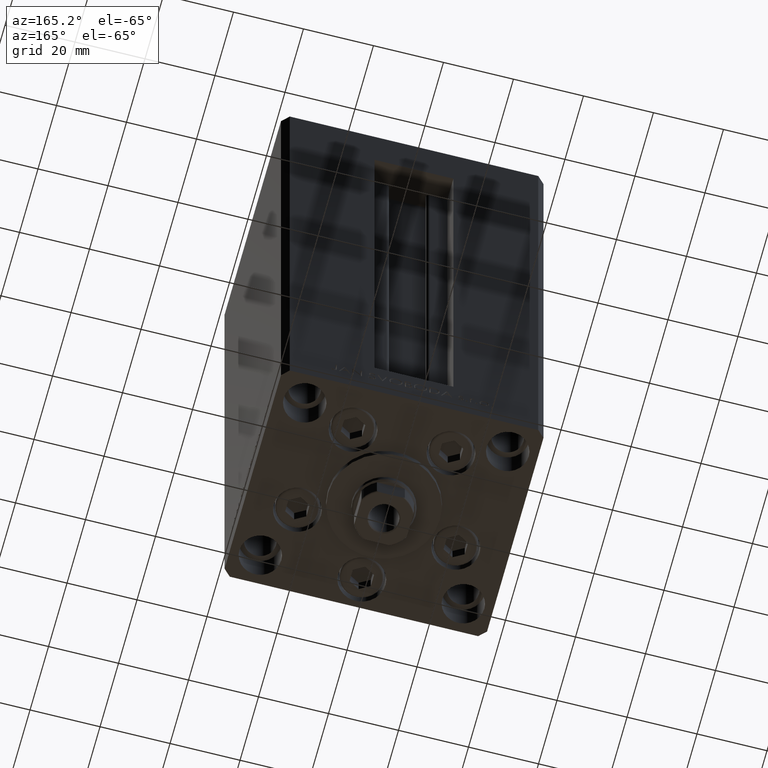
[diagram: clean part render]
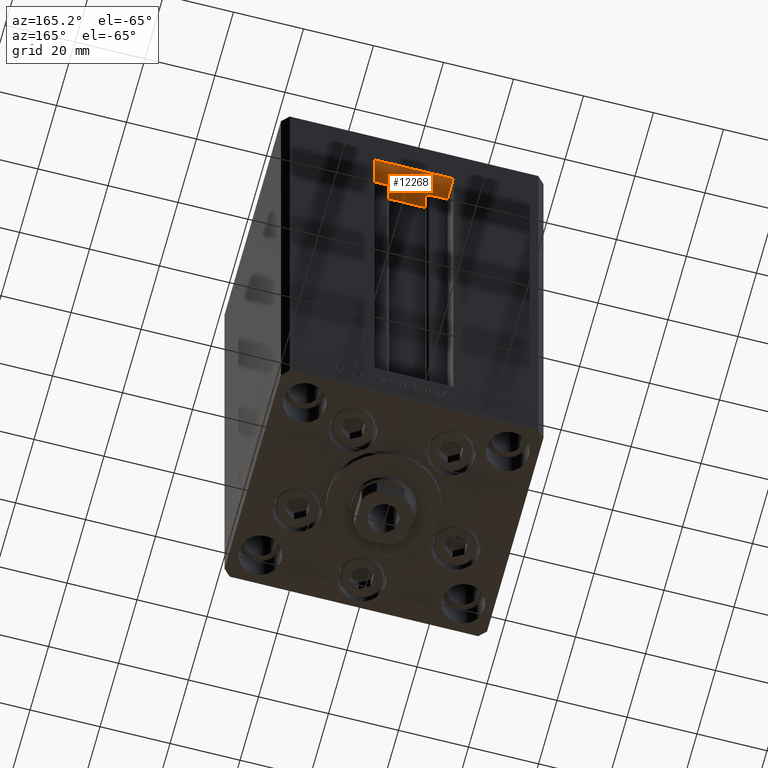
[diagram: same view with one face highlighted and labeled with its STEP entity id]
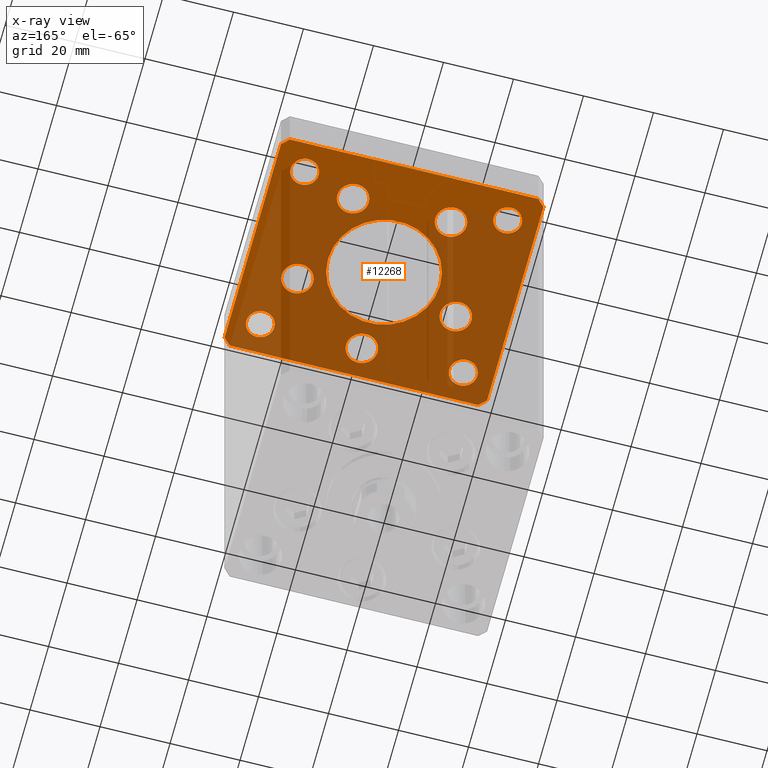
[diagram: x-ray of the same camera — body ghosted, the highlighted face saturated]
A machine part, auxiliary view. The second image highlights one B-rep face of the part: STEP entity #12268.
The next image is the same camera in x-ray: the body ghosted, the highlighted face saturated — about 77% of this face is hidden behind the body in this view.
In plain terms, the highlighted planar face has unit normal (0, 0, 1).
Its self-contained STEP definition (entity closure, byte-faithful):
#61 = CARTESIAN_POINT ( 'NONE',  ( 35.50000000000000711, -32.50000000000000711, -15.00000000000000000 ) ) ;
#133 = ORIENTED_EDGE ( 'NONE', *, *, #27629, .F. ) ;
#797 = CIRCLE ( 'NONE', #26075, 4.000000000000003553 ) ;
#798 = CARTESIAN_POINT ( 'NONE',  ( -29.00000000000001066, -23.99999999999999289, -15.00000000000000000 ) ) ;
#1103 = EDGE_CURVE ( 'NONE', #8492, #8795, #15734, .T. ) ;
#1115 = CARTESIAN_POINT ( 'NONE',  ( 2.939152317953647500E-15, -24.00000000000000000, -15.00000000000000000 ) ) ;
#1205 = AXIS2_PLACEMENT_3D ( 'NONE', #1729, #46508, #31651 ) ;
#1446 = VERTEX_POINT ( 'NONE', #41700 ) ;
#1515 = CARTESIAN_POINT ( 'NONE',  ( 18.12741699796951877, -8.000000000000000000, -15.00000000000000000 ) ) ;
#1563 = EDGE_CURVE ( 'NONE', #29244, #1446, #2762, .T. ) ;
#1729 = CARTESIAN_POINT ( 'NONE',  ( 13.99106857963322348, 19.50000000000000000, -15.00000000000000000 ) ) ;
#2355 = EDGE_CURVE ( 'NONE', #8795, #8492, #3951, .T. ) ;
#2383 = FACE_BOUND ( 'NONE', #45266, .T. ) ;
#2534 = DIRECTION ( 'NONE',  ( 1.000000000000000000, 9.773090005503140331E-17, 0.000000000000000000 ) ) ;
#2687 = DIRECTION ( 'NONE',  ( -1.000000000000000000, -1.954618001100629052E-16, 0.000000000000000000 ) ) ;
#2688 = AXIS2_PLACEMENT_3D ( 'NONE', #17793, #45910, #32885 ) ;
#2762 = LINE ( 'NONE', #37134, #13367 ) ;
#2916 = VERTEX_POINT ( 'NONE', #45251 ) ;
#3340 = AXIS2_PLACEMENT_3D ( 'NONE', #16637, #6475, #39412 ) ;
#3720 = CARTESIAN_POINT ( 'NONE',  ( 33.00000000000001421, -23.99999999999999289, -15.00000000000000000 ) ) ;
#3881 = ORIENTED_EDGE ( 'NONE', *, *, #6677, .F. ) ;
#3951 = CIRCLE ( 'NONE', #17355, 16.00000000000000000 ) ;
#4207 = CARTESIAN_POINT ( 'NONE',  ( -33.00000000000000711, -23.99999999999999289, -15.00000000000000000 ) ) ;
#4332 = DIRECTION ( 'NONE',  ( 0.000000000000000000, -0.000000000000000000, -1.000000000000000000 ) ) ;
#4628 = CARTESIAN_POINT ( 'NONE',  ( -33.00000000000000711, 24.00000000000000711, -15.00000000000000000 ) ) ;
#4777 = ORIENTED_EDGE ( 'NONE', *, *, #48711, .F. ) ;
#4799 = CARTESIAN_POINT ( 'NONE',  ( 29.00000000000001066, -23.99999999999999289, -15.00000000000000000 ) ) ;
#4915 = EDGE_CURVE ( 'NONE', #21838, #33755, #18248, .T. ) ;
#4998 = DIRECTION ( 'NONE',  ( -1.000000000000000000, 0.000000000000000000, 0.000000000000000000 ) ) ;
#5255 = CIRCLE ( 'NONE', #32889, 4.500000000000000888 ) ;
#5548 = CARTESIAN_POINT ( 'NONE',  ( -22.62741699796951877, -8.000000000000005329, -15.00000000000000000 ) ) ;
#5904 = AXIS2_PLACEMENT_3D ( 'NONE', #11712, #21858, #36949 ) ;
#6094 = FACE_BOUND ( 'NONE', #12799, .T. ) ;
#6118 = DIRECTION ( 'NONE',  ( -0.000000000000000000, -0.000000000000000000, -1.000000000000000000 ) ) ;
#6163 = DIRECTION ( 'NONE',  ( 0.000000000000000000, -0.000000000000000000, -1.000000000000000000 ) ) ;
#6249 = ORIENTED_EDGE ( 'NONE', *, *, #26755, .F. ) ;
#6339 = CARTESIAN_POINT ( 'NONE',  ( 29.00000000000001066, 24.00000000000000711, -15.00000000000000000 ) ) ;
#6407 = AXIS2_PLACEMENT_3D ( 'NONE', #23459, #19264, #8127 ) ;
#6410 = CARTESIAN_POINT ( 'NONE',  ( 4.500000000000003553, -24.00000000000000000, -15.00000000000000000 ) ) ;
#6475 = DIRECTION ( 'NONE',  ( 0.000000000000000000, -0.000000000000000000, -1.000000000000000000 ) ) ;
#6494 = VERTEX_POINT ( 'NONE', #25447 ) ;
#6566 = DIRECTION ( 'NONE',  ( 1.000000000000000000, 0.000000000000000000, 0.000000000000000000 ) ) ;
#6617 = CARTESIAN_POINT ( 'NONE',  ( 37.49999999999992184, 30.50000000000001066, -15.00000000000000000 ) ) ;
#6677 = EDGE_CURVE ( 'NONE', #14936, #9602, #27742, .T. ) ;
#7054 = FACE_BOUND ( 'NONE', #46936, .T. ) ;
#8127 = DIRECTION ( 'NONE',  ( 1.000000000000000000, 0.000000000000000000, 0.000000000000000000 ) ) ;
#8237 = AXIS2_PLACEMENT_3D ( 'NONE', #5548, #21542, #19903 ) ;
#8375 = CARTESIAN_POINT ( 'NONE',  ( -29.00000000000001066, -23.99999999999999289, -15.00000000000000000 ) ) ;
#8439 = VERTEX_POINT ( 'NONE', #16883 ) ;
#8492 = VERTEX_POINT ( 'NONE', #9953 ) ;
#8532 = EDGE_CURVE ( 'NONE', #6494, #11290, #47555, .T. ) ;
#8795 = VERTEX_POINT ( 'NONE', #31669 ) ;
#8929 = ORIENTED_EDGE ( 'NONE', *, *, #2355, .F. ) ;
#9018 = CIRCLE ( 'NONE', #37478, 4.000000000000000000 ) ;
#9058 = CARTESIAN_POINT ( 'NONE',  ( 25.00000000000000711, -23.99999999999999289, -15.00000000000000000 ) ) ;
#9373 = VERTEX_POINT ( 'NONE', #16466 ) ;
#9553 = EDGE_LOOP ( 'NONE', ( #43995, #33935, #14394, #19820, #29967, #30247, #6249, #11086 ) ) ;
#9602 = VERTEX_POINT ( 'NONE', #1515 ) ;
#9751 = CIRCLE ( 'NONE', #46096, 4.000000000000000000 ) ;
#9876 = CARTESIAN_POINT ( 'NONE',  ( 0.000000000000000000, 0.000000000000000000, -15.00000000000000000 ) ) ;
#9908 = ORIENTED_EDGE ( 'NONE', *, *, #44485, .F. ) ;
#9953 = CARTESIAN_POINT ( 'NONE',  ( 16.00000000000000000, 0.000000000000000000, -15.00000000000000000 ) ) ;
#10140 = CARTESIAN_POINT ( 'NONE',  ( 25.00000000000000711, 24.00000000000000711, -15.00000000000000000 ) ) ;
#10324 = VECTOR ( 'NONE', #2687, 1000.000000000000000 ) ;
#10540 = CARTESIAN_POINT ( 'NONE',  ( -18.49106857963322526, 19.49999999999999645, -15.00000000000000000 ) ) ;
#10582 = CIRCLE ( 'NONE', #8237, 4.499999999999997335 ) ;
#10771 = CARTESIAN_POINT ( 'NONE',  ( -25.00000000000001066, -23.99999999999999289, -15.00000000000000000 ) ) ;
#10897 = EDGE_CURVE ( 'NONE', #36947, #24684, #31826, .T. ) ;
#10944 = LINE ( 'NONE', #61, #12350 ) ;
#11086 = ORIENTED_EDGE ( 'NONE', *, *, #22606, .F. ) ;
#11290 = VERTEX_POINT ( 'NONE', #22632 ) ;
#11712 = CARTESIAN_POINT ( 'NONE',  ( -13.99106857963322703, 19.49999999999999645, -15.00000000000000000 ) ) ;
#11791 = CARTESIAN_POINT ( 'NONE',  ( -29.00000000000001066, 24.00000000000000711, -15.00000000000000000 ) ) ;
#12180 = VERTEX_POINT ( 'NONE', #10771 ) ;
#12268 = ADVANCED_FACE ( 'NONE', ( #44177, #25859, #7054, #40955, #13748, #36272, #17216, #2383, #43697, #6094, #17456 ), #25125, .F. ) ;
#12350 = VECTOR ( 'NONE', #15144, 1000.000000000000000 ) ;
#12453 = EDGE_CURVE ( 'NONE', #21813, #21895, #38101, .T. ) ;
#12479 = DIRECTION ( 'NONE',  ( 1.000000000000000000, 0.000000000000000000, 0.000000000000000000 ) ) ;
#12799 = EDGE_LOOP ( 'NONE', ( #39891, #35411 ) ) ;
#13367 = VECTOR ( 'NONE', #32933, 1000.000000000000000 ) ;
#13476 = ORIENTED_EDGE ( 'NONE', *, *, #12453, .F. ) ;
#13748 = FACE_BOUND ( 'NONE', #44787, .T. ) ;
#14394 = ORIENTED_EDGE ( 'NONE', *, *, #16957, .F. ) ;
#14905 = DIRECTION ( 'NONE',  ( 0.000000000000000000, -0.000000000000000000, -1.000000000000000000 ) ) ;
#14936 = VERTEX_POINT ( 'NONE', #22233 ) ;
#15144 = DIRECTION ( 'NONE',  ( 0.7071067811865487940, 0.7071067811865463515, 0.000000000000000000 ) ) ;
#15184 = DIRECTION ( 'NONE',  ( 0.000000000000000000, 0.000000000000000000, 1.000000000000000000 ) ) ;
#15314 = CIRCLE ( 'NONE', #47698, 4.500000000000001776 ) ;
#15457 = CARTESIAN_POINT ( 'NONE',  ( 29.00000000000001066, 24.00000000000000711, -15.00000000000000000 ) ) ;
#15734 = CIRCLE ( 'NONE', #29177, 16.00000000000000000 ) ;
#15879 = DIRECTION ( 'NONE',  ( -0.000000000000000000, -0.000000000000000000, -1.000000000000000000 ) ) ;
#15912 = CARTESIAN_POINT ( 'NONE',  ( 0.000000000000000000, 0.000000000000000000, -15.00000000000000000 ) ) ;
#16466 = CARTESIAN_POINT ( 'NONE',  ( -37.49999999999998579, -30.50000000000001421, -15.00000000000000000 ) ) ;
#16475 = DIRECTION ( 'NONE',  ( 0.000000000000000000, 0.000000000000000000, 1.000000000000000000 ) ) ;
#16637 = CARTESIAN_POINT ( 'NONE',  ( 13.99106857963322348, 19.50000000000000000, -15.00000000000000000 ) ) ;
#16763 = AXIS2_PLACEMENT_3D ( 'NONE', #1115, #4332, #23122 ) ;
#16883 = CARTESIAN_POINT ( 'NONE',  ( -35.49999999999998579, -32.50000000000001421, -15.00000000000000000 ) ) ;
#16900 = CARTESIAN_POINT ( 'NONE',  ( -27.12741699796951877, -8.000000000000005329, -15.00000000000000000 ) ) ;
#16957 = EDGE_CURVE ( 'NONE', #33755, #21337, #39849, .T. ) ;
#17216 = FACE_BOUND ( 'NONE', #36613, .T. ) ;
#17355 = AXIS2_PLACEMENT_3D ( 'NONE', #15912, #42151, #27044 ) ;
#17370 = EDGE_CURVE ( 'NONE', #21895, #21813, #15314, .T. ) ;
#17378 = CIRCLE ( 'NONE', #45044, 3.999999999999996447 ) ;
#17392 = ORIENTED_EDGE ( 'NONE', *, *, #44903, .T. ) ;
#17456 = FACE_BOUND ( 'NONE', #46519, .T. ) ;
#17793 = CARTESIAN_POINT ( 'NONE',  ( -13.99106857963322703, 19.49999999999999645, -15.00000000000000000 ) ) ;
#18248 = LINE ( 'NONE', #33342, #10324 ) ;
#19055 = CARTESIAN_POINT ( 'NONE',  ( -18.12741699796952233, -8.000000000000005329, -15.00000000000000000 ) ) ;
#19202 = VERTEX_POINT ( 'NONE', #9058 ) ;
#19260 = AXIS2_PLACEMENT_3D ( 'NONE', #6339, #43465, #21186 ) ;
#19264 = DIRECTION ( 'NONE',  ( 0.000000000000000000, -0.000000000000000000, -1.000000000000000000 ) ) ;
#19341 = VECTOR ( 'NONE', #2534, 1000.000000000000000 ) ;
#19598 = CARTESIAN_POINT ( 'NONE',  ( 22.62741699796951877, -8.000000000000000000, -15.00000000000000000 ) ) ;
#19767 = EDGE_LOOP ( 'NONE', ( #29598, #37159 ) ) ;
#19820 = ORIENTED_EDGE ( 'NONE', *, *, #4915, .F. ) ;
#19884 = DIRECTION ( 'NONE',  ( -0.000000000000000000, -0.000000000000000000, -1.000000000000000000 ) ) ;
#19903 = DIRECTION ( 'NONE',  ( 1.000000000000000000, 0.000000000000000000, 0.000000000000000000 ) ) ;
#20870 = EDGE_CURVE ( 'NONE', #11290, #6494, #31204, .T. ) ;
#21186 = DIRECTION ( 'NONE',  ( 1.000000000000000000, 0.000000000000000000, 0.000000000000000000 ) ) ;
#21337 = VERTEX_POINT ( 'NONE', #27339 ) ;
#21393 = CARTESIAN_POINT ( 'NONE',  ( -35.50000000000002842, 32.49999999999999289, -15.00000000000000000 ) ) ;
#21413 = CARTESIAN_POINT ( 'NONE',  ( 0.000000000000000000, 0.000000000000000000, -15.00000000000000000 ) ) ;
#21542 = DIRECTION ( 'NONE',  ( 0.000000000000000000, -0.000000000000000000, -1.000000000000000000 ) ) ;
#21813 = VERTEX_POINT ( 'NONE', #6410 ) ;
#21823 = EDGE_CURVE ( 'NONE', #38265, #19202, #28861, .T. ) ;
#21838 = VERTEX_POINT ( 'NONE', #25699 ) ;
#21858 = DIRECTION ( 'NONE',  ( 0.000000000000000000, -0.000000000000000000, -1.000000000000000000 ) ) ;
#21895 = VERTEX_POINT ( 'NONE', #42014 ) ;
#22233 = CARTESIAN_POINT ( 'NONE',  ( 27.12741699796952233, -8.000000000000000000, -15.00000000000000000 ) ) ;
#22606 = EDGE_CURVE ( 'NONE', #8439, #40171, #47803, .T. ) ;
#22632 = CARTESIAN_POINT ( 'NONE',  ( 18.49106857963322881, 19.50000000000000000, -15.00000000000000000 ) ) ;
#23104 = CARTESIAN_POINT ( 'NONE',  ( 2.939152317953647500E-15, -24.00000000000000000, -15.00000000000000000 ) ) ;
#23122 = DIRECTION ( 'NONE',  ( 1.000000000000000000, 0.000000000000000000, 0.000000000000000000 ) ) ;
#23366 = AXIS2_PLACEMENT_3D ( 'NONE', #44024, #28918, #41041 ) ;
#23390 = EDGE_CURVE ( 'NONE', #12180, #27862, #39901, .T. ) ;
#23459 = CARTESIAN_POINT ( 'NONE',  ( 22.62741699796951877, -8.000000000000000000, -15.00000000000000000 ) ) ;
#23478 = LINE ( 'NONE', #42527, #41975 ) ;
#23729 = CARTESIAN_POINT ( 'NONE',  ( -22.62741699796951877, -8.000000000000005329, -15.00000000000000000 ) ) ;
#23749 = ORIENTED_EDGE ( 'NONE', *, *, #36524, .F. ) ;
#24217 = DIRECTION ( 'NONE',  ( 0.000000000000000000, -0.000000000000000000, -1.000000000000000000 ) ) ;
#24435 = DIRECTION ( 'NONE',  ( -1.000000000000000000, 0.000000000000000000, 0.000000000000000000 ) ) ;
#24452 = VERTEX_POINT ( 'NONE', #46559 ) ;
#24684 = VERTEX_POINT ( 'NONE', #19055 ) ;
#25125 = PLANE ( 'NONE',  #32541 ) ;
#25359 = DIRECTION ( 'NONE',  ( -0.000000000000000000, 0.000000000000000000, 1.000000000000000000 ) ) ;
#25447 = CARTESIAN_POINT ( 'NONE',  ( 9.491068579633218150, 19.50000000000000000, -15.00000000000000000 ) ) ;
#25699 = CARTESIAN_POINT ( 'NONE',  ( 35.49999999999992184, 32.50000000000000711, -15.00000000000000000 ) ) ;
#25859 = FACE_BOUND ( 'NONE', #19767, .T. ) ;
#25899 = CARTESIAN_POINT ( 'NONE',  ( -35.50000000000002842, 32.49999999999999289, -15.00000000000000000 ) ) ;
#26075 = AXIS2_PLACEMENT_3D ( 'NONE', #4799, #19884, #34973 ) ;
#26311 = ORIENTED_EDGE ( 'NONE', *, *, #17370, .F. ) ;
#26379 = CIRCLE ( 'NONE', #19260, 4.000000000000003553 ) ;
#26755 = EDGE_CURVE ( 'NONE', #40171, #29244, #10944, .T. ) ;
#26896 = EDGE_LOOP ( 'NONE', ( #33686, #8929 ) ) ;
#26998 = ORIENTED_EDGE ( 'NONE', *, *, #31605, .T. ) ;
#27044 = DIRECTION ( 'NONE',  ( 1.000000000000000000, 0.000000000000000000, 0.000000000000000000 ) ) ;
#27339 = CARTESIAN_POINT ( 'NONE',  ( -37.50000000000001421, 30.49999999999998579, -15.00000000000000000 ) ) ;
#27546 = CARTESIAN_POINT ( 'NONE',  ( 35.50000000000000711, -32.50000000000000711, -15.00000000000000000 ) ) ;
#27629 = EDGE_CURVE ( 'NONE', #9602, #14936, #5255, .T. ) ;
#27742 = CIRCLE ( 'NONE', #6407, 4.500000000000000888 ) ;
#27862 = VERTEX_POINT ( 'NONE', #4207 ) ;
#28810 = CIRCLE ( 'NONE', #5904, 4.499999999999999112 ) ;
#28861 = CIRCLE ( 'NONE', #23366, 4.000000000000003553 ) ;
#28918 = DIRECTION ( 'NONE',  ( -0.000000000000000000, -0.000000000000000000, -1.000000000000000000 ) ) ;
#29177 = AXIS2_PLACEMENT_3D ( 'NONE', #9876, #6163, #40531 ) ;
#29244 = VERTEX_POINT ( 'NONE', #42611 ) ;
#29598 = ORIENTED_EDGE ( 'NONE', *, *, #47974, .F. ) ;
#29624 = EDGE_LOOP ( 'NONE', ( #4777, #9908 ) ) ;
#29967 = ORIENTED_EDGE ( 'NONE', *, *, #46619, .F. ) ;
#29985 = DIRECTION ( 'NONE',  ( 1.000000000000000000, 0.000000000000000000, 0.000000000000000000 ) ) ;
#30031 = DIRECTION ( 'NONE',  ( 1.000000000000000000, 0.000000000000000000, 0.000000000000000000 ) ) ;
#30247 = ORIENTED_EDGE ( 'NONE', *, *, #1563, .F. ) ;
#31080 = ORIENTED_EDGE ( 'NONE', *, *, #8532, .F. ) ;
#31204 = CIRCLE ( 'NONE', #1205, 4.500000000000005329 ) ;
#31605 = EDGE_CURVE ( 'NONE', #44175, #39561, #43319, .T. ) ;
#31627 = DIRECTION ( 'NONE',  ( 1.000000000000000000, 0.000000000000000000, 0.000000000000000000 ) ) ;
#31651 = DIRECTION ( 'NONE',  ( 1.000000000000000000, 0.000000000000000000, 0.000000000000000000 ) ) ;
#31669 = CARTESIAN_POINT ( 'NONE',  ( -16.00000000000000000, 1.959434878635764737E-15, -15.00000000000000000 ) ) ;
#31826 = CIRCLE ( 'NONE', #35017, 4.499999999999997335 ) ;
#32006 = AXIS2_PLACEMENT_3D ( 'NONE', #798, #15879, #4998 ) ;
#32541 = AXIS2_PLACEMENT_3D ( 'NONE', #21413, #25359, #6566 ) ;
#32595 = LINE ( 'NONE', #6617, #47680 ) ;
#32757 = VERTEX_POINT ( 'NONE', #10540 ) ;
#32885 = DIRECTION ( 'NONE',  ( 1.000000000000000000, 0.000000000000000000, 0.000000000000000000 ) ) ;
#32889 = AXIS2_PLACEMENT_3D ( 'NONE', #19598, #14905, #29985 ) ;
#32933 = DIRECTION ( 'NONE',  ( -1.478780668045802821E-15, 1.000000000000000000, 0.000000000000000000 ) ) ;
#33342 = CARTESIAN_POINT ( 'NONE',  ( 35.49999999999992184, 32.50000000000000711, -15.00000000000000000 ) ) ;
#33686 = ORIENTED_EDGE ( 'NONE', *, *, #1103, .F. ) ;
#33755 = VERTEX_POINT ( 'NONE', #21393 ) ;
#33935 = ORIENTED_EDGE ( 'NONE', *, *, #41592, .F. ) ;
#34508 = DIRECTION ( 'NONE',  ( 0.000000000000000000, 0.000000000000000000, 1.000000000000000000 ) ) ;
#34973 = DIRECTION ( 'NONE',  ( -1.000000000000000000, 0.000000000000000000, 0.000000000000000000 ) ) ;
#35017 = AXIS2_PLACEMENT_3D ( 'NONE', #23729, #24217, #31627 ) ;
#35108 = DIRECTION ( 'NONE',  ( 4.550094363217855288E-16, -1.000000000000000000, 0.000000000000000000 ) ) ;
#35411 = ORIENTED_EDGE ( 'NONE', *, *, #36892, .F. ) ;
#35780 = CIRCLE ( 'NONE', #2688, 4.499999999999999112 ) ;
#36272 = FACE_BOUND ( 'NONE', #29624, .T. ) ;
#36424 = CARTESIAN_POINT ( 'NONE',  ( -35.49999999999998579, -32.50000000000001421, -15.00000000000000000 ) ) ;
#36524 = EDGE_CURVE ( 'NONE', #27862, #12180, #17378, .T. ) ;
#36613 = EDGE_LOOP ( 'NONE', ( #26998, #46522 ) ) ;
#36892 = EDGE_CURVE ( 'NONE', #19202, #38265, #797, .T. ) ;
#36947 = VERTEX_POINT ( 'NONE', #16900 ) ;
#36949 = DIRECTION ( 'NONE',  ( 1.000000000000000000, 0.000000000000000000, 0.000000000000000000 ) ) ;
#37134 = CARTESIAN_POINT ( 'NONE',  ( 37.50000000000001421, -30.50000000000000711, -15.00000000000000000 ) ) ;
#37159 = ORIENTED_EDGE ( 'NONE', *, *, #10897, .F. ) ;
#37478 = AXIS2_PLACEMENT_3D ( 'NONE', #48596, #15184, #45131 ) ;
#38101 = CIRCLE ( 'NONE', #16763, 4.500000000000001776 ) ;
#38239 = VECTOR ( 'NONE', #43557, 1000.000000000000000 ) ;
#38265 = VERTEX_POINT ( 'NONE', #3720 ) ;
#38540 = VERTEX_POINT ( 'NONE', #4628 ) ;
#39250 = DIRECTION ( 'NONE',  ( 1.000000000000000000, 0.000000000000000000, 0.000000000000000000 ) ) ;
#39309 = DIRECTION ( 'NONE',  ( 0.7071067811865474617, -0.7071067811865474617, 0.000000000000000000 ) ) ;
#39314 = LINE ( 'NONE', #39556, #40423 ) ;
#39412 = DIRECTION ( 'NONE',  ( 1.000000000000000000, 0.000000000000000000, 0.000000000000000000 ) ) ;
#39556 = CARTESIAN_POINT ( 'NONE',  ( -37.50000000000001421, 30.49999999999998579, -15.00000000000000000 ) ) ;
#39561 = VERTEX_POINT ( 'NONE', #10140 ) ;
#39849 = LINE ( 'NONE', #25899, #38239 ) ;
#39891 = ORIENTED_EDGE ( 'NONE', *, *, #21823, .F. ) ;
#39901 = CIRCLE ( 'NONE', #32006, 3.999999999999996447 ) ;
#40171 = VERTEX_POINT ( 'NONE', #27546 ) ;
#40423 = VECTOR ( 'NONE', #35108, 1000.000000000000000 ) ;
#40510 = DIRECTION ( 'NONE',  ( -0.7071067811865482389, 0.7071067811865469066, 0.000000000000000000 ) ) ;
#40531 = DIRECTION ( 'NONE',  ( 1.000000000000000000, 0.000000000000000000, 0.000000000000000000 ) ) ;
#40830 = EDGE_CURVE ( 'NONE', #9373, #8439, #23478, .T. ) ;
#40955 = FACE_BOUND ( 'NONE', #45222, .T. ) ;
#41041 = DIRECTION ( 'NONE',  ( -1.000000000000000000, 0.000000000000000000, 0.000000000000000000 ) ) ;
#41356 = CARTESIAN_POINT ( 'NONE',  ( 33.00000000000001421, 24.00000000000000711, -15.00000000000000000 ) ) ;
#41592 = EDGE_CURVE ( 'NONE', #21337, #9373, #39314, .T. ) ;
#41700 = CARTESIAN_POINT ( 'NONE',  ( 37.49999999999992184, 30.50000000000001066, -15.00000000000000000 ) ) ;
#41910 = DIRECTION ( 'NONE',  ( 0.000000000000000000, -0.000000000000000000, -1.000000000000000000 ) ) ;
#41962 = ORIENTED_EDGE ( 'NONE', *, *, #20870, .F. ) ;
#41975 = VECTOR ( 'NONE', #39309, 1000.000000000000114 ) ;
#42014 = CARTESIAN_POINT ( 'NONE',  ( -4.499999999999999112, -24.00000000000000000, -15.00000000000000000 ) ) ;
#42151 = DIRECTION ( 'NONE',  ( 0.000000000000000000, -0.000000000000000000, -1.000000000000000000 ) ) ;
#42527 = CARTESIAN_POINT ( 'NONE',  ( -37.49999999999998579, -30.50000000000001421, -15.00000000000000000 ) ) ;
#42611 = CARTESIAN_POINT ( 'NONE',  ( 37.50000000000001421, -30.50000000000000711, -15.00000000000000000 ) ) ;
#42895 = EDGE_CURVE ( 'NONE', #39561, #44175, #26379, .T. ) ;
#43319 = CIRCLE ( 'NONE', #47277, 4.000000000000003553 ) ;
#43465 = DIRECTION ( 'NONE',  ( 0.000000000000000000, 0.000000000000000000, 1.000000000000000000 ) ) ;
#43557 = DIRECTION ( 'NONE',  ( -0.7071067811865426878, -0.7071067811865524577, 0.000000000000000000 ) ) ;
#43697 = FACE_OUTER_BOUND ( 'NONE', #9553, .T. ) ;
#43995 = ORIENTED_EDGE ( 'NONE', *, *, #40830, .F. ) ;
#44024 = CARTESIAN_POINT ( 'NONE',  ( 29.00000000000001066, -23.99999999999999289, -15.00000000000000000 ) ) ;
#44175 = VERTEX_POINT ( 'NONE', #41356 ) ;
#44177 = FACE_BOUND ( 'NONE', #26896, .T. ) ;
#44485 = EDGE_CURVE ( 'NONE', #32757, #24452, #35780, .T. ) ;
#44787 = EDGE_LOOP ( 'NONE', ( #41962, #31080 ) ) ;
#44835 = ORIENTED_EDGE ( 'NONE', *, *, #23390, .F. ) ;
#44903 = EDGE_CURVE ( 'NONE', #2916, #38540, #9018, .T. ) ;
#45044 = AXIS2_PLACEMENT_3D ( 'NONE', #8375, #6118, #24435 ) ;
#45131 = DIRECTION ( 'NONE',  ( 1.000000000000000000, 0.000000000000000000, 0.000000000000000000 ) ) ;
#45222 = EDGE_LOOP ( 'NONE', ( #3881, #133 ) ) ;
#45251 = CARTESIAN_POINT ( 'NONE',  ( -25.00000000000001066, 24.00000000000000711, -15.00000000000000000 ) ) ;
#45266 = EDGE_LOOP ( 'NONE', ( #17392, #47981 ) ) ;
#45301 = EDGE_CURVE ( 'NONE', #38540, #2916, #9751, .T. ) ;
#45910 = DIRECTION ( 'NONE',  ( 0.000000000000000000, -0.000000000000000000, -1.000000000000000000 ) ) ;
#46096 = AXIS2_PLACEMENT_3D ( 'NONE', #11791, #16475, #39250 ) ;
#46508 = DIRECTION ( 'NONE',  ( 0.000000000000000000, -0.000000000000000000, -1.000000000000000000 ) ) ;
#46519 = EDGE_LOOP ( 'NONE', ( #44835, #23749 ) ) ;
#46522 = ORIENTED_EDGE ( 'NONE', *, *, #42895, .T. ) ;
#46559 = CARTESIAN_POINT ( 'NONE',  ( -9.491068579633228808, 19.49999999999999645, -15.00000000000000000 ) ) ;
#46619 = EDGE_CURVE ( 'NONE', #1446, #21838, #32595, .T. ) ;
#46936 = EDGE_LOOP ( 'NONE', ( #13476, #26311 ) ) ;
#47277 = AXIS2_PLACEMENT_3D ( 'NONE', #15457, #34508, #12479 ) ;
#47555 = CIRCLE ( 'NONE', #3340, 4.500000000000005329 ) ;
#47680 = VECTOR ( 'NONE', #40510, 999.9999999999998863 ) ;
#47698 = AXIS2_PLACEMENT_3D ( 'NONE', #23104, #41910, #30031 ) ;
#47803 = LINE ( 'NONE', #36424, #19341 ) ;
#47974 = EDGE_CURVE ( 'NONE', #24684, #36947, #10582, .T. ) ;
#47981 = ORIENTED_EDGE ( 'NONE', *, *, #45301, .T. ) ;
#48596 = CARTESIAN_POINT ( 'NONE',  ( -29.00000000000001066, 24.00000000000000711, -15.00000000000000000 ) ) ;
#48711 = EDGE_CURVE ( 'NONE', #24452, #32757, #28810, .T. ) ;